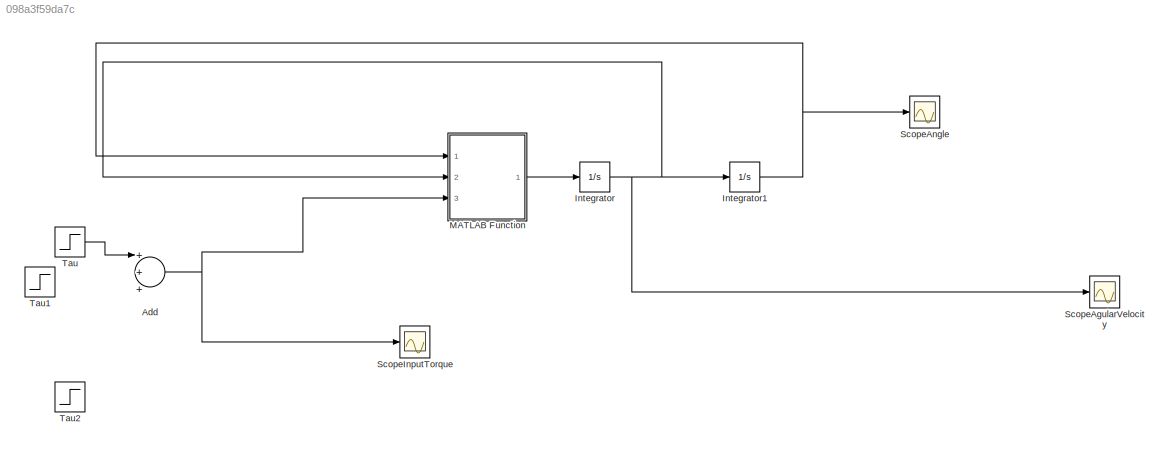
MODEL slx_098a3f59da7c
KIND model
BLOCK [Sum] Add
  InputSameDT = off
  Inputs = +++
  OutDataTypeStr = Inherit: Inherit via internal rule
  Ports = [3, 1]
  SaturateOnIntegerOverflow = off
BLOCK [Integrator] Integrator
  InitialCondition = [0 0 0]
  Ports = [1, 1]
BLOCK [Integrator] Integrator1
  InitialCondition = [0 pi-0.1 0.1]
  Ports = [1, 1]
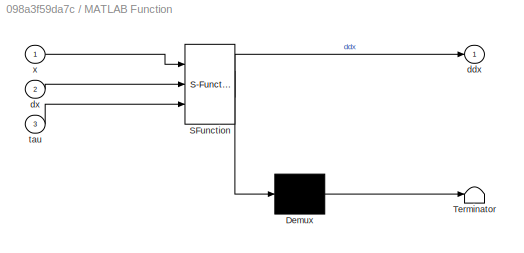
BLOCK [SubSystem] MATLAB Function
  ErrorFcn = Stateflow.Translate.translate
  PermitHierarchicalResolution = ExplicitOnly
  Ports = [3, 1]
  RequestExecContextInheritance = off
  SFBlockType = MATLAB Function
  TreatAsAtomicUnit = on
BLOCK [Demux] MATLAB Function/ Demux 
  Outputs = 1
  Ports = [1, 1]
BLOCK [S-Function] MATLAB Function/ SFunction 
  EnableBusSupport = on
  FunctionName = sf_sfun
  PortCounts = [3 2]
  Ports = [3, 2]
  Tag = Stateflow S-Function Linear_Model 2
BLOCK [Terminator] MATLAB Function/ Terminator 
BLOCK [Outport] MATLAB Function/ddx
  IconDisplay = Port number
BLOCK [Inport] MATLAB Function/dx
  IconDisplay = Port number
  Port = 2
BLOCK [Inport] MATLAB Function/tau
  IconDisplay = Port number
  Port = 3
BLOCK [Inport] MATLAB Function/x
  IconDisplay = Port number
BLOCK [Scope] ScopeAgularVelocity
  Floating = off
  NumInputPorts = 1
  Ports = [1]
  SaveName = jointVelocity
  SaveToWorkspace = on
  ShowLegends = off
BLOCK [Scope] ScopeAngle
  Floating = off
  NumInputPorts = 1
  Ports = [1]
  SaveName = jointVelocity1
  SaveToWorkspace = on
  ShowLegends = off
BLOCK [Scope] ScopeInputTorque
  Floating = off
  NumInputPorts = 1
  Ports = [1]
  SaveName = jointVelocity2
  SaveToWorkspace = on
  ShowLegends = off
BLOCK [Step] Tau
  After = [0 0 0]
  Before = [0 0 0]
  SampleTime = 0
BLOCK [Step] Tau1
  After = [-0.1 0 0]
  Before = [0 0 0]
  SampleTime = 0
  Time = 80
BLOCK [Step] Tau2
  After = [0.1 0 0]
  Before = [0 0 0]
  SampleTime = 0
  Time = 81
NET Add:1 -> MATLAB Function:3, ScopeInputTorque:1
NET Integrator1:1 -> MATLAB Function:1, ScopeAngle:1
NET Integrator:1 -> Integrator1:1, MATLAB Function:2, ScopeAgularVelocity:1
LINE MATLAB Function:1 -> Integrator:1
LINE Tau:1 -> Add:1
note: NET lines group one-source signal fan-out (src -> all destinations, sorted); 1:1 wires keep LINE
CHART MATLAB Function states=1 transitions=1
  STATE_LABEL 'eML_blk_kernel()'
  STATE_LABEL 'SCRIPT:\nfunction ddx = fcn(x,dx,tau)\n%getting the state spacemodel of the system\n%give real values to the angles and the angular velocities\n\n%giving the points where we want to liearize the system\n% LINEARIZATION POINTS\n% angles\nq01=0;\nq02=pi;\nq03=0;\n% angular velocities\ndq01=0;\ndq02=0;\ndq03=0;\n%angular acceleration\nddq01=0;\nddq02=0;\nddq03=0;\n\n%giving some random data for M, L, I\nL1=1.25;\nL2=1.04;...<+3608ch>'
